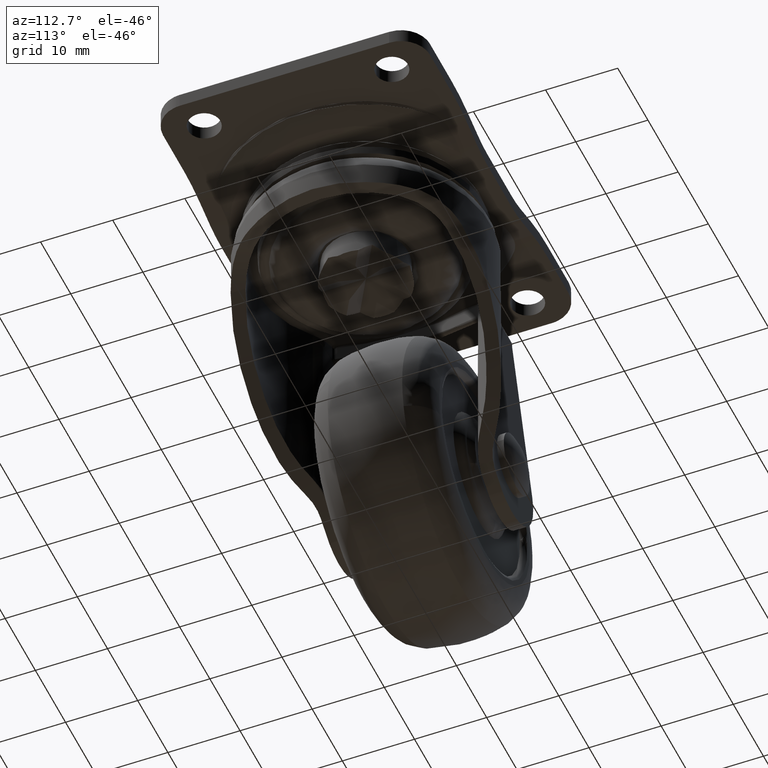
[diagram: clean part render]
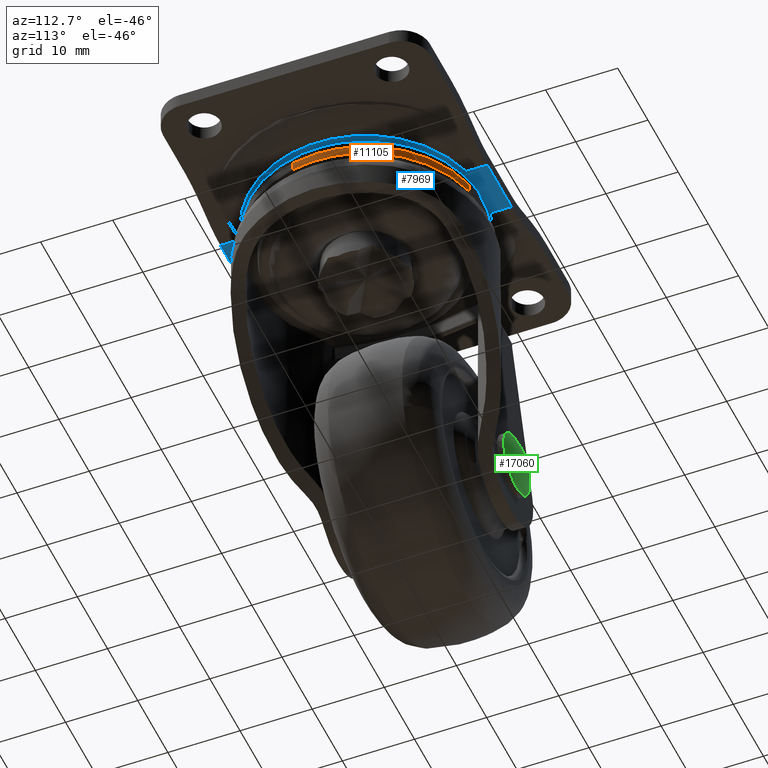
[diagram: same view with three faces highlighted in distinct colors, each labeled with its STEP entity id]
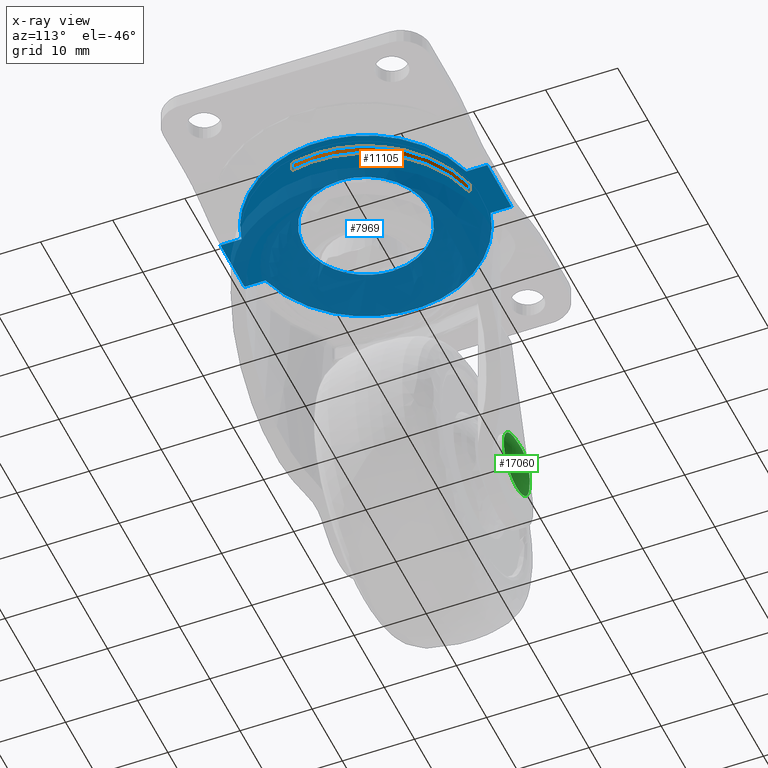
[diagram: x-ray of the same camera — body ghosted, the three highlighted faces saturated]
A machine part, auxiliary view with three faces highlighted in distinct colors.
The next image is the same camera in x-ray (body ghosted, the three faces saturated) — at least one of them is partly hidden behind the body in this view.
Their STEP definitions:

[orange] entity #11105 — the highlighted face is a freeform B-spline surface patch.
#10914=CARTESIAN_POINT('',(15.860163577433070,-3.538037774957516,-7.533269999998377));
#10915=VERTEX_POINT('',#10914);
#10933=CARTESIAN_POINT('',(15.860166526118260,-3.538024556642547,-6.310000000000000));
#10934=VERTEX_POINT('',#10933);
#10935=CARTESIAN_POINT('',(15.860166526118260,-3.538024556642547,-6.310000000000000));
#10936=CARTESIAN_POINT('',(15.860163577433070,-3.538037774957516,-7.533269999998377));
#10937=QUASI_UNIFORM_CURVE('',1,(#10935,#10936),.UNSPECIFIED.,.F.,.U.);
#10938=EDGE_CURVE('',#10934,#10915,#10937,.T.);
#10957=CARTESIAN_POINT('',(3.538035171290130,15.860164158249891,-6.310000000000000));
#10958=VERTEX_POINT('',#10957);
#10974=CARTESIAN_POINT('',(3.538061482766482,15.860158288738459,-7.533270000000483));
#10975=VERTEX_POINT('',#10974);
#10976=CARTESIAN_POINT('',(3.538035171290130,15.860164158249891,-6.310000000000000));
#10977=CARTESIAN_POINT('',(3.538061482766482,15.860158288738459,-7.533270000000483));
#10978=QUASI_UNIFORM_CURVE('',1,(#10976,#10977),.UNSPECIFIED.,.F.,.U.);
#10979=EDGE_CURVE('',#10958,#10975,#10978,.T.);
#11042=CARTESIAN_POINT('',(3.538043884662805,15.860162214498320,-6.279418250000001));
#11043=CARTESIAN_POINT('',(19.398206099161115,12.322118329835515,-6.279418250000001));
#11044=CARTESIAN_POINT('',(15.860162214498320,-3.538043884662798,-6.279418250000001));
#11045=CARTESIAN_POINT('',(3.538043884662805,15.860162214498320,-7.564616293749899));
#11046=CARTESIAN_POINT('',(19.398206099161115,12.322118329835515,-7.564616293749900));
#11047=CARTESIAN_POINT('',(15.860162214498320,-3.538043884662798,-7.564616293749899));
#11055=(BOUNDED_SURFACE()B_SPLINE_SURFACE(2,1,((#11042,#11045),(#11043,#11046),(#11044,#11047)),.UNSPECIFIED.,.F.,.F.,.U.)B_SPLINE_SURFACE_WITH_KNOTS((3,3),(2,2),(0.0,26.923881554251182),(0.0,1.0),.UNSPECIFIED.)GEOMETRIC_REPRESENTATION_ITEM()RATIONAL_B_SPLINE_SURFACE(((1.0,1.0),(0.707106781186548,0.707106781186548),(1.0,1.0)))REPRESENTATION_ITEM('')SURFACE());
#11056=CARTESIAN_POINT('',(3.538061482766482,15.860158288738466,-7.533270000000483));
#11057=CARTESIAN_POINT('',(4.076210213311607,15.740108837735775,-7.533269999999901));
#11058=CARTESIAN_POINT('',(4.604983832019486,15.583857799236990,-7.533269999999900));
#11059=CARTESIAN_POINT('',(16.249999999999996,12.142790005370088,-7.533269999999900));
#11060=CARTESIAN_POINT('',(16.250000000000000,7.105427E-015,-7.533269999999900));
#11061=CARTESIAN_POINT('',(16.249999999999996,-1.790495825548136,-7.533269999999900));
#11062=CARTESIAN_POINT('',(15.860163577433067,-3.538037774957516,-7.533269999998377));
#11070=(BOUNDED_CURVE()B_SPLINE_CURVE(2,(#11056,#11057,#11058,#11059,#11060,#11061,#11062),.UNSPECIFIED.,.F.,.U.)B_SPLINE_CURVE_WITH_KNOTS((3,2,2,3),(0.235986833267176,0.250000000000000,0.500000000000000,0.544392736134806),.UNSPECIFIED.)CURVE()GEOMETRIC_REPRESENTATION_ITEM()RATIONAL_B_SPLINE_CURVE((0.978947513683572,0.988848696543277,1.0,0.801056683522449,1.0,0.964673447383315,0.941892833397549))REPRESENTATION_ITEM(''));
#11071=EDGE_CURVE('',#10975,#10915,#11070,.T.);
#11072=ORIENTED_EDGE('',*,*,#11071,.F.);
#11073=ORIENTED_EDGE('',*,*,#10979,.F.);
#11074=CARTESIAN_POINT('',(16.250000000000000,7.105427E-015,-6.310000000000000));
#11075=VERTEX_POINT('',#11074);
#11076=CARTESIAN_POINT('',(3.538035171290130,15.860164158249896,-6.310000000000000));
#11077=CARTESIAN_POINT('',(16.250000000000004,13.024419319080355,-6.310000000000000));
#11078=CARTESIAN_POINT('',(16.250000000000000,7.105427E-015,-6.310000000000000));
#11086=(BOUNDED_CURVE()B_SPLINE_CURVE(2,(#11076,#11077,#11078),.UNSPECIFIED.,.F.,.U.)B_SPLINE_CURVE_WITH_KNOTS((3,3),(0.287255681519039,0.500000000000000),.UNSPECIFIED.)CURVE()GEOMETRIC_REPRESENTATION_ITEM()RATIONAL_B_SPLINE_CURVE((0.925713520333601,0.750754527103348,1.0))REPRESENTATION_ITEM(''));
#11087=EDGE_CURVE('',#10958,#11075,#11086,.T.);
#11088=ORIENTED_EDGE('',*,*,#11087,.T.);
#11089=CARTESIAN_POINT('',(16.250000000000000,7.105427E-015,-6.310000000000000));
#11090=CARTESIAN_POINT('',(16.250000000000000,-1.790488971731071,-6.310000000000000));
#11091=CARTESIAN_POINT('',(15.860166526118254,-3.538024556642547,-6.310000000000000));
#11099=(BOUNDED_CURVE()B_SPLINE_CURVE(2,(#11089,#11090,#11091),.UNSPECIFIED.,.F.,.U.)B_SPLINE_CURVE_WITH_KNOTS((3,3),(0.500000000000000,0.537255571997524),.UNSPECIFIED.)CURVE()GEOMETRIC_REPRESENTATION_ITEM()RATIONAL_B_SPLINE_CURVE((1.0,0.956352382395636,0.925713700472710))REPRESENTATION_ITEM(''));
#11100=EDGE_CURVE('',#11075,#10934,#11099,.T.);
#11101=ORIENTED_EDGE('',*,*,#11100,.T.);
#11102=ORIENTED_EDGE('',*,*,#10938,.T.);
#11103=EDGE_LOOP('',(#11072,#11073,#11088,#11101,#11102));
#11104=FACE_OUTER_BOUND('',#11103,.T.);
#11105=ADVANCED_FACE('',(#11104),#11055,.T.);

[blue] entity #7969 — the highlighted face is a freeform B-spline surface patch.
#2159=CARTESIAN_POINT('',(4.415575449060887,-7.496178590025568,-4.139999999999920));
#2160=VERTEX_POINT('',#2159);
#2166=CARTESIAN_POINT('',(-8.699999999999999,0.0,-4.139999999999920));
#2167=VERTEX_POINT('',#2166);
#2168=CARTESIAN_POINT('',(4.415575449060887,-7.496178590025568,-4.139999999999921));
#2169=CARTESIAN_POINT('',(2.371887059241285,-8.700000000000001,-4.139999999999920));
#2170=CARTESIAN_POINT('',(0.0,-8.699999999999999,-4.139999999999920));
#2171=CARTESIAN_POINT('',(-8.699999999999999,-8.699999999999999,-4.139999999999921));
#2172=CARTESIAN_POINT('',(-8.699999999999999,0.0,-4.139999999999920));
#2180=(BOUNDED_CURVE()B_SPLINE_CURVE(2,(#2168,#2169,#2170,#2171,#2172),.UNSPECIFIED.,.F.,.U.)B_SPLINE_CURVE_WITH_KNOTS((3,2,3),(0.663391014539947,0.750000000000000,1.0),.UNSPECIFIED.)CURVE()GEOMETRIC_REPRESENTATION_ITEM()RATIONAL_B_SPLINE_CURVE((0.867367359478168,0.898531261881750,1.0,0.707106781186547,1.0))REPRESENTATION_ITEM(''));
#2181=EDGE_CURVE('',#2160,#2167,#2180,.T.);
#2183=CARTESIAN_POINT('',(-3.979624363377256,7.736445561517430,-4.139999999999920));
#2184=VERTEX_POINT('',#2183);
#2185=CARTESIAN_POINT('',(-8.699999999999999,0.0,-4.139999999999920));
#2186=CARTESIAN_POINT('',(-8.699999999999999,5.308286306937732,-4.139999999999920));
#2187=CARTESIAN_POINT('',(-3.979624363377256,7.736445561517430,-4.139999999999921));
#2195=(BOUNDED_CURVE()B_SPLINE_CURVE(2,(#2185,#2186,#2187),.UNSPECIFIED.,.F.,.U.)B_SPLINE_CURVE_WITH_KNOTS((3,3),(0.0,0.172199580689985),.UNSPECIFIED.)CURVE()GEOMETRIC_REPRESENTATION_ITEM()RATIONAL_B_SPLINE_CURVE((1.0,0.798255642133534,0.874433634916474))REPRESENTATION_ITEM(''));
#2196=EDGE_CURVE('',#2167,#2184,#2195,.T.);
#2242=CARTESIAN_POINT('',(8.699999999999999,0.0,-4.139999999999920));
#2243=VERTEX_POINT('',#2242);
#2244=CARTESIAN_POINT('',(-3.979624363377256,7.736445561517430,-4.139999999999921));
#2245=CARTESIAN_POINT('',(-2.106461024788426,8.699999999999999,-4.139999999999920));
#2246=CARTESIAN_POINT('',(0.0,8.699999999999999,-4.139999999999920));
#2247=CARTESIAN_POINT('',(8.699999999999999,8.699999999999999,-4.139999999999921));
#2248=CARTESIAN_POINT('',(8.699999999999999,0.0,-4.139999999999920));
#2256=(BOUNDED_CURVE()B_SPLINE_CURVE(2,(#2244,#2245,#2246,#2247,#2248),.UNSPECIFIED.,.F.,.U.)B_SPLINE_CURVE_WITH_KNOTS((3,2,3),(0.172199580689985,0.250000000000000,0.500000000000000),.UNSPECIFIED.)CURVE()GEOMETRIC_REPRESENTATION_ITEM()RATIONAL_B_SPLINE_CURVE((0.874433634916474,0.908851139053014,1.0,0.707106781186547,1.0))REPRESENTATION_ITEM(''));
#2257=EDGE_CURVE('',#2184,#2243,#2256,.T.);
#2259=CARTESIAN_POINT('',(8.699999999999999,0.0,-4.139999999999920));
#2260=CARTESIAN_POINT('',(8.699999999999999,-4.972466056601334,-4.139999999999922));
#2261=CARTESIAN_POINT('',(4.415575449060887,-7.496178590025568,-4.139999999999921));
#2269=(BOUNDED_CURVE()B_SPLINE_CURVE(2,(#2259,#2260,#2261),.UNSPECIFIED.,.F.,.U.)B_SPLINE_CURVE_WITH_KNOTS((3,3),(0.500000000000000,0.663391014539947),.UNSPECIFIED.)CURVE()GEOMETRIC_REPRESENTATION_ITEM()RATIONAL_B_SPLINE_CURVE((1.0,0.808575519304797,0.867367359478168))REPRESENTATION_ITEM(''));
#2270=EDGE_CURVE('',#2243,#2160,#2269,.T.);
#3810=CARTESIAN_POINT('',(-4.000563753376685,15.593331264674999,-4.139999999999900));
#3811=VERTEX_POINT('',#3810);
#4558=CARTESIAN_POINT('',(-4.000563753376685,-15.593331264674999,-4.139999999999900));
#4559=VERTEX_POINT('',#4558);
#4685=CARTESIAN_POINT('',(4.000563753376685,15.593331264674950,-4.139999999999900));
#4686=VERTEX_POINT('',#4685);
#5580=CARTESIAN_POINT('',(4.000563753376680,-15.593331264674999,-4.139999999999905));
#5581=VERTEX_POINT('',#5580);
#7537=CARTESIAN_POINT('',(-4.000563753376685,18.500000000000000,-4.139999999999900));
#7538=VERTEX_POINT('',#7537);
#7552=CARTESIAN_POINT('',(-4.000563753376685,18.500000000000000,-4.139999999999900));
#7553=CARTESIAN_POINT('',(-4.000563753376685,15.593331264674999,-4.139999999999900));
#7554=QUASI_UNIFORM_CURVE('',1,(#7552,#7553),.UNSPECIFIED.,.F.,.U.);
#7555=EDGE_CURVE('',#7538,#3811,#7554,.T.);
#7599=CARTESIAN_POINT('',(-4.000563753376685,-18.500000000000000,-4.139999999999900));
#7600=VERTEX_POINT('',#7599);
#7601=CARTESIAN_POINT('',(-4.000563753376685,-15.593331264674999,-4.139999999999900));
#7602=CARTESIAN_POINT('',(-4.000563753376685,-18.500000000000000,-4.139999999999900));
#7603=QUASI_UNIFORM_CURVE('',1,(#7601,#7602),.UNSPECIFIED.,.F.,.U.);
#7604=EDGE_CURVE('',#4559,#7600,#7603,.T.);
#7849=CARTESIAN_POINT('',(4.000563753376685,-18.500000000000000,-4.139999999999900));
#7850=VERTEX_POINT('',#7849);
#7864=CARTESIAN_POINT('',(4.000563753376680,-15.593331264674999,-4.139999999999905));
#7865=CARTESIAN_POINT('',(4.000563753376685,-18.500000000000000,-4.139999999999900));
#7866=QUASI_UNIFORM_CURVE('',1,(#7864,#7865),.UNSPECIFIED.,.F.,.U.);
#7867=EDGE_CURVE('',#5581,#7850,#7866,.T.);
#7889=CARTESIAN_POINT('',(4.000563753376680,18.500000000000000,-4.139999999999900));
#7890=VERTEX_POINT('',#7889);
#7891=CARTESIAN_POINT('',(4.000563753376680,18.500000000000000,-4.139999999999900));
#7892=CARTESIAN_POINT('',(4.000563753376685,15.593331264674950,-4.139999999999900));
#7893=QUASI_UNIFORM_CURVE('',1,(#7891,#7892),.UNSPECIFIED.,.F.,.U.);
#7894=EDGE_CURVE('',#7890,#4686,#7893,.T.);
#7912=CARTESIAN_POINT('',(-17.706561015707070,20.348149928286830,-4.139999999999900));
#7913=CARTESIAN_POINT('',(17.706560439985630,20.348149928286830,-4.139999999999900));
#7914=CARTESIAN_POINT('',(-17.706561015707070,-20.348150920704160,-4.139999999999900));
#7915=CARTESIAN_POINT('',(17.706560439985630,-20.348150920704160,-4.139999999999900));
#7916=B_SPLINE_SURFACE_WITH_KNOTS('',1,1,((#7912,#7914),(#7913,#7915)),.UNSPECIFIED.,.F.,.F.,.U.,(2,2),(2,2),(0.0,35.413121455692703),(0.0,40.696300848990987),.UNSPECIFIED.);
#7917=ORIENTED_EDGE('',*,*,#7555,.F.);
#7918=CARTESIAN_POINT('',(-4.000563753376685,18.500000000000000,-4.139999999999900));
#7919=CARTESIAN_POINT('',(4.000563753376680,18.500000000000000,-4.139999999999900));
#7920=QUASI_UNIFORM_CURVE('',1,(#7918,#7919),.UNSPECIFIED.,.F.,.U.);
#7921=EDGE_CURVE('',#7538,#7890,#7920,.T.);
#7922=ORIENTED_EDGE('',*,*,#7921,.T.);
#7923=ORIENTED_EDGE('',*,*,#7894,.T.);
#7924=CARTESIAN_POINT('',(4.000563753376691,15.593331264674980,-4.139999999999900));
#7925=CARTESIAN_POINT('',(16.098338121518051,12.489573843490945,-4.139999999999900));
#7926=CARTESIAN_POINT('',(16.098338121518051,7.105427E-015,-4.139999999999900));
#7927=CARTESIAN_POINT('',(16.098338121518051,-12.489573843490950,-4.139999999999900));
#7928=CARTESIAN_POINT('',(4.000563753376667,-15.593331264674971,-4.139999999999900));
#7936=(BOUNDED_CURVE()B_SPLINE_CURVE(2,(#7924,#7925,#7926,#7927,#7928),.UNSPECIFIED.,.F.,.U.)B_SPLINE_CURVE_WITH_KNOTS((3,2,3),(0.0,0.500000000000000,1.0),.UNSPECIFIED.)CURVE()GEOMETRIC_REPRESENTATION_ITEM()RATIONAL_B_SPLINE_CURVE((1.0,0.790097421920965,1.0,0.790097421920965,1.0))REPRESENTATION_ITEM(''));
#7937=EDGE_CURVE('',#4686,#5581,#7936,.T.);
#7938=ORIENTED_EDGE('',*,*,#7937,.T.);
#7939=ORIENTED_EDGE('',*,*,#7867,.T.);
#7940=CARTESIAN_POINT('',(4.000563753376685,-18.500000000000000,-4.139999999999900));
#7941=CARTESIAN_POINT('',(-4.000563753376685,-18.500000000000000,-4.139999999999900));
#7942=QUASI_UNIFORM_CURVE('',1,(#7940,#7941),.UNSPECIFIED.,.F.,.U.);
#7943=EDGE_CURVE('',#7850,#7600,#7942,.T.);
#7944=ORIENTED_EDGE('',*,*,#7943,.T.);
#7945=ORIENTED_EDGE('',*,*,#7604,.F.);
#7946=CARTESIAN_POINT('',(-4.000563753376675,-15.593331264674971,-4.139999999999900));
#7947=CARTESIAN_POINT('',(-16.098338121518051,-12.489573843490943,-4.139999999999900));
#7948=CARTESIAN_POINT('',(-16.098338121518051,7.105427E-015,-4.139999999999900));
#7949=CARTESIAN_POINT('',(-16.098338121518051,12.489573843490954,-4.139999999999900));
#7950=CARTESIAN_POINT('',(-4.000563753376683,15.593331264674980,-4.139999999999900));
#7958=(BOUNDED_CURVE()B_SPLINE_CURVE(2,(#7946,#7947,#7948,#7949,#7950),.UNSPECIFIED.,.F.,.U.)B_SPLINE_CURVE_WITH_KNOTS((3,2,3),(0.0,0.500000000000000,1.0),.UNSPECIFIED.)CURVE()GEOMETRIC_REPRESENTATION_ITEM()RATIONAL_B_SPLINE_CURVE((1.0,0.790097421920964,1.0,0.790097421920964,1.0))REPRESENTATION_ITEM(''));
#7959=EDGE_CURVE('',#4559,#3811,#7958,.T.);
#7960=ORIENTED_EDGE('',*,*,#7959,.T.);
#7961=EDGE_LOOP('',(#7917,#7922,#7923,#7938,#7939,#7944,#7945,#7960));
#7962=FACE_OUTER_BOUND('',#7961,.T.);
#7963=ORIENTED_EDGE('',*,*,#2270,.F.);
#7964=ORIENTED_EDGE('',*,*,#2257,.F.);
#7965=ORIENTED_EDGE('',*,*,#2196,.F.);
#7966=ORIENTED_EDGE('',*,*,#2181,.F.);
#7967=EDGE_LOOP('',(#7963,#7964,#7965,#7966));
#7968=FACE_BOUND('',#7967,.T.);
#7969=ADVANCED_FACE('',(#7962,#7968),#7916,.T.);

[green] entity #17060 — the highlighted face is a freeform B-spline surface patch.
#16494=CARTESIAN_POINT('',(-14.779709512956771,12.933474000000020,-34.498539502689070));
#16495=VERTEX_POINT('',#16494);
#16496=CARTESIAN_POINT('',(-19.0,12.933474000000020,-39.250185000000101));
#16497=VERTEX_POINT('',#16496);
#16498=CARTESIAN_POINT('',(-14.779709512956771,12.933474000000018,-34.498539502689070));
#16499=CARTESIAN_POINT('',(-14.750000000000004,12.933474000000018,-34.748482491459470));
#16500=CARTESIAN_POINT('',(-14.750000000000000,12.933474000000020,-35.000185000000101));
#16501=CARTESIAN_POINT('',(-14.750000000000005,12.933474000000022,-39.250185000000094));
#16502=CARTESIAN_POINT('',(-19.0,12.933474000000020,-39.250185000000101));
#16510=(BOUNDED_CURVE()B_SPLINE_CURVE(2,(#16498,#16499,#16500,#16501,#16502),.UNSPECIFIED.,.F.,.U.)B_SPLINE_CURVE_WITH_KNOTS((3,2,3),(0.229562473514059,0.250000000000000,0.500000000000000),.UNSPECIFIED.)CURVE()GEOMETRIC_REPRESENTATION_ITEM()RATIONAL_B_SPLINE_CURVE((0.956026754184778,0.976055948331790,1.0,0.707106781186548,1.0))REPRESENTATION_ITEM(''));
#16511=EDGE_CURVE('',#16495,#16497,#16510,.T.);
#16552=CARTESIAN_POINT('',(-23.242072893291560,12.933474000000020,-35.259641293045689));
#16553=VERTEX_POINT('',#16552);
#16559=CARTESIAN_POINT('',(-19.0,12.933474000000020,-39.250185000000101));
#16560=CARTESIAN_POINT('',(-22.998000784306811,12.933474000000022,-39.250185000000101));
#16561=CARTESIAN_POINT('',(-23.242072893291564,12.933474000000027,-35.259641293045689));
#16569=(BOUNDED_CURVE()B_SPLINE_CURVE(2,(#16559,#16560,#16561),.UNSPECIFIED.,.F.,.U.)B_SPLINE_CURVE_WITH_KNOTS((3,3),(0.500000000000000,0.739332962240142),.UNSPECIFIED.)CURVE()GEOMETRIC_REPRESENTATION_ITEM()RATIONAL_B_SPLINE_CURVE((1.0,0.719603993285305,0.976072041669287))REPRESENTATION_ITEM(''));
#16570=EDGE_CURVE('',#16497,#16553,#16569,.T.);
#16593=CARTESIAN_POINT('',(-19.0,12.933474000000020,-30.750185000000101));
#16594=VERTEX_POINT('',#16593);
#16595=CARTESIAN_POINT('',(-19.0,12.933474000000020,-30.750185000000101));
#16596=CARTESIAN_POINT('',(-15.225258264742356,12.933474000000020,-30.750185000000094));
#16597=CARTESIAN_POINT('',(-14.779709512956773,12.933474000000022,-34.498539502689063));
#16605=(BOUNDED_CURVE()B_SPLINE_CURVE(2,(#16595,#16596,#16597),.UNSPECIFIED.,.F.,.U.)B_SPLINE_CURVE_WITH_KNOTS((3,3),(0.0,0.229562473514058),.UNSPECIFIED.)CURVE()GEOMETRIC_REPRESENTATION_ITEM()RATIONAL_B_SPLINE_CURVE((1.0,0.731050832854758,0.956026754184777))REPRESENTATION_ITEM(''));
#16606=EDGE_CURVE('',#16594,#16495,#16605,.T.);
#16608=CARTESIAN_POINT('',(-23.242072893291564,12.933474000000027,-35.259641293045689));
#16609=CARTESIAN_POINT('',(-23.250000000000000,12.933474000000020,-35.130034244041603));
#16610=CARTESIAN_POINT('',(-23.250000000000000,12.933474000000020,-35.000185000000101));
#16611=CARTESIAN_POINT('',(-23.250000000000000,12.933474000000022,-30.750185000000101));
#16612=CARTESIAN_POINT('',(-19.0,12.933474000000020,-30.750185000000101));
#16620=(BOUNDED_CURVE()B_SPLINE_CURVE(2,(#16608,#16609,#16610,#16611,#16612),.UNSPECIFIED.,.F.,.U.)B_SPLINE_CURVE_WITH_KNOTS((3,2,3),(0.739332962240143,0.750000000000000,1.0),.UNSPECIFIED.)CURVE()GEOMETRIC_REPRESENTATION_ITEM()RATIONAL_B_SPLINE_CURVE((0.976072041669289,0.987502787901243,1.0,0.707106781186548,1.0))REPRESENTATION_ITEM(''));
#16621=EDGE_CURVE('',#16553,#16594,#16620,.T.);
#17030=CARTESIAN_POINT('',(-23.311764699500646,11.619564907780269,-30.688324918159438));
#17031=CARTESIAN_POINT('',(-21.308536948104670,12.725550254483666,-30.383008967579013));
#17032=CARTESIAN_POINT('',(-16.691450056660212,12.725550254483666,-30.383008967579013));
#17033=CARTESIAN_POINT('',(-14.688214238705749,11.619553279491543,-30.688328128239942));
#17034=CARTESIAN_POINT('',(-23.617088360619871,12.725602651942589,-32.691589751424289));
#17035=CARTESIAN_POINT('',(-21.484465801078269,14.000158000000001,-32.515664239020637));
#17036=CARTESIAN_POINT('',(-16.515520213346480,14.000158000000001,-32.515664239020637));
#17037=CARTESIAN_POINT('',(-14.382889329567362,12.725589318507524,-32.691591591824093));
#17038=CARTESIAN_POINT('',(-23.617088360619871,12.725602651942589,-37.308779484147891));
#17039=CARTESIAN_POINT('',(-21.484465801078269,14.000158000000001,-37.484704938298670));
#17040=CARTESIAN_POINT('',(-16.515520213346480,14.000158000000001,-37.484704938298670));
#17041=CARTESIAN_POINT('',(-14.382889329567362,12.725589318507524,-37.308777643748726));
#17042=CARTESIAN_POINT('',(-23.311764888328479,11.619565591810868,-39.312043842918548));
#17043=CARTESIAN_POINT('',(-21.308537056362578,12.725551038814137,-39.617359720090526));
#17044=CARTESIAN_POINT('',(-16.691449948401708,12.725551038814137,-39.617359720090526));
#17045=CARTESIAN_POINT('',(-14.688214049877123,11.619553963521144,-39.312040632838823));
#17053=(BOUNDED_SURFACE()B_SPLINE_SURFACE(2,2,((#17030,#17034,#17038,#17042),(#17031,#17035,#17039,#17043),(#17032,#17036,#17040,#17044),(#17033,#17037,#17041,#17045)),.UNSPECIFIED.,.F.,.F.,.U.)B_SPLINE_SURFACE_WITH_KNOTS((3,1,3),(3,1,3),(0.0,4.786549163312021,9.573125271105827),(0.0,4.786655048556637,9.573308512143756),.UNSPECIFIED.)GEOMETRIC_REPRESENTATION_ITEM()RATIONAL_B_SPLINE_SURFACE(((1.152412515166240,1.076204571811451,1.076204571811451,1.152412464697909),(1.076207943354790,1.0,1.0,1.076207892886458),(1.076207943354790,1.0,1.0,1.076207892886458),(1.152413373111456,1.076205429756666,1.076205429756666,1.152413322643124)))REPRESENTATION_ITEM('')SURFACE());
#17054=ORIENTED_EDGE('',*,*,#16606,.T.);
#17055=ORIENTED_EDGE('',*,*,#16511,.T.);
#17056=ORIENTED_EDGE('',*,*,#16570,.T.);
#17057=ORIENTED_EDGE('',*,*,#16621,.T.);
#17058=EDGE_LOOP('',(#17054,#17055,#17056,#17057));
#17059=FACE_OUTER_BOUND('',#17058,.T.);
#17060=ADVANCED_FACE('',(#17059),#17053,.T.);